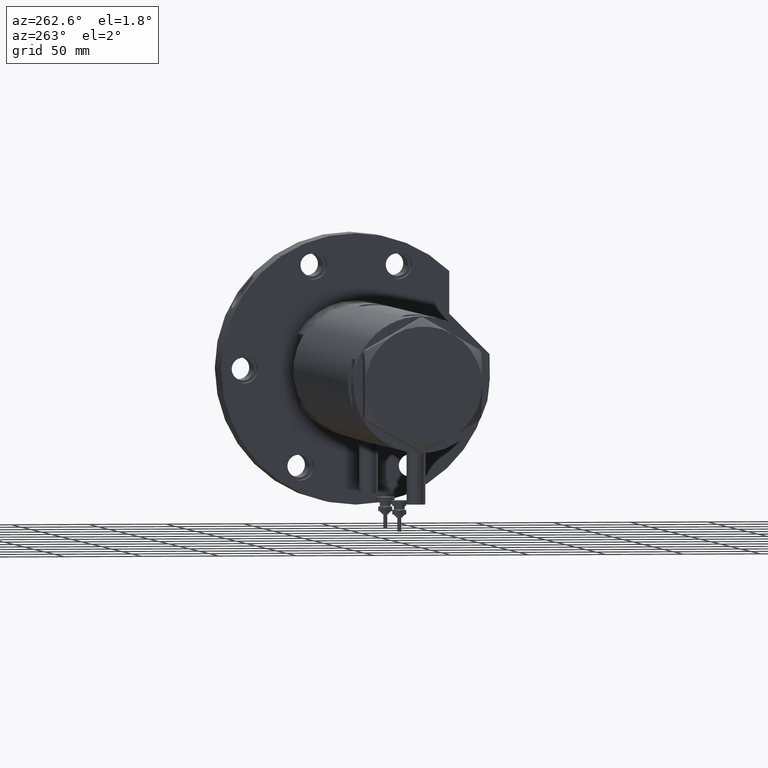
[diagram: clean part render]
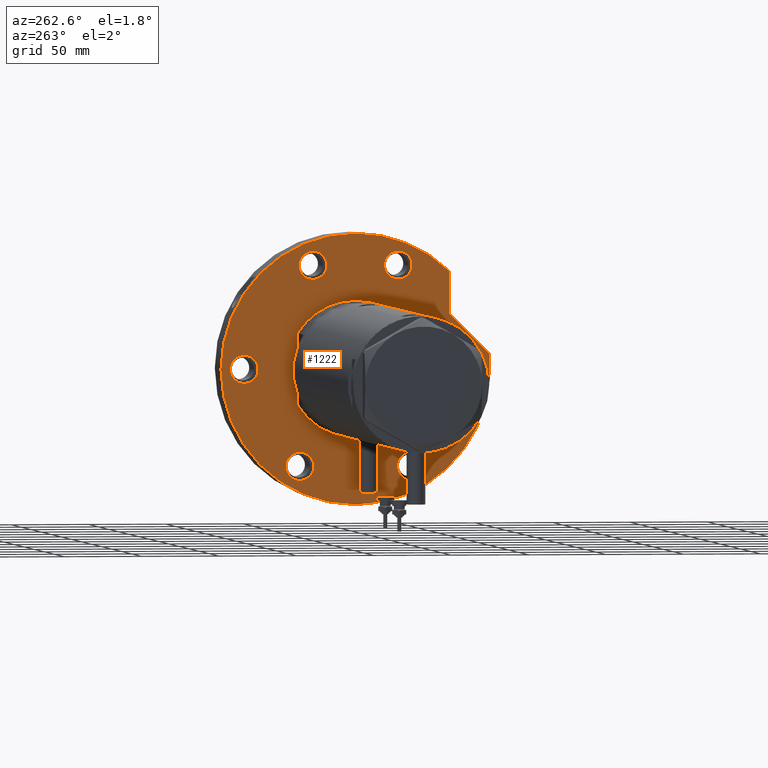
[diagram: same view with one face highlighted and labeled with its STEP entity id]
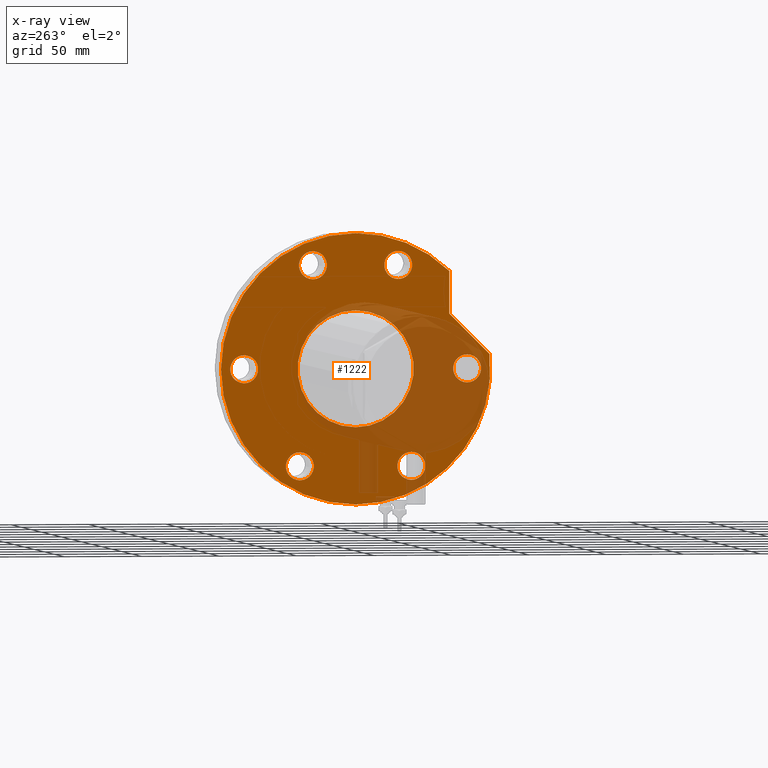
[diagram: x-ray of the same camera — body ghosted, the highlighted face saturated]
A machine part, auxiliary view. The second image highlights one B-rep face of the part: STEP entity #1222.
The next image is the same camera in x-ray: the body ghosted, the highlighted face saturated — about 30% of this face is hidden behind the body in this view.
In plain terms, the highlighted planar face has unit normal (1, 0, -0).
Its self-contained STEP definition (entity closure, byte-faithful):
#6 = DIRECTION ( 'NONE',  ( 0.000000000000000000, 0.000000000000000000, -1.000000000000000000 ) ) ;
#55 = EDGE_LOOP ( 'NONE', ( #5934, #3404 ) ) ;
#97 = CARTESIAN_POINT ( 'NONE',  ( 35.23236590573035443, 60.47687547247904405, 0.000000000000000000 ) ) ;
#114 = ORIENTED_EDGE ( 'NONE', *, *, #836, .F. ) ;
#273 = EDGE_CURVE ( 'NONE', #532, #2891, #4568, .T. ) ;
#324 = DIRECTION ( 'NONE',  ( -1.000000000000000000, 0.000000000000000000, 0.000000000000000000 ) ) ;
#335 = AXIS2_PLACEMENT_3D ( 'NONE', #4802, #5900, #6441 ) ;
#386 = DIRECTION ( 'NONE',  ( 0.000000000000000000, 0.000000000000000000, -1.000000000000000000 ) ) ;
#423 = FACE_BOUND ( 'NONE', #7437, .T. ) ;
#501 = AXIS2_PLACEMENT_3D ( 'NONE', #2897, #6, #4801 ) ;
#506 = FACE_BOUND ( 'NONE', #1653, .T. ) ;
#519 = ORIENTED_EDGE ( 'NONE', *, *, #6237, .F. ) ;
#532 = VERTEX_POINT ( 'NONE', #1779 ) ;
#593 = CIRCLE ( 'NONE', #4113, 9.000000000000001776 ) ;
#696 = CARTESIAN_POINT ( 'NONE',  ( 8.999999999999998224, 72.00000000000000000, 0.000000000000000000 ) ) ;
#710 = AXIS2_PLACEMENT_3D ( 'NONE', #6590, #1378, #6017 ) ;
#805 = CARTESIAN_POINT ( 'NONE',  ( 57.51932634081251905, -27.55320713028675073, 0.000000000000000000 ) ) ;
#824 = AXIS2_PLACEMENT_3D ( 'NONE', #2160, #6651, #5021 ) ;
#836 = EDGE_CURVE ( 'NONE', #1155, #5548, #2493, .T. ) ;
#889 = ORIENTED_EDGE ( 'NONE', *, *, #3706, .F. ) ;
#926 = VERTEX_POINT ( 'NONE', #2841 ) ;
#953 = VERTEX_POINT ( 'NONE', #1134 ) ;
#955 = VERTEX_POINT ( 'NONE', #3373 ) ;
#958 = FACE_BOUND ( 'NONE', #7241, .T. ) ;
#998 = DIRECTION ( 'NONE',  ( 0.000000000000000000, 0.000000000000000000, 1.000000000000000000 ) ) ;
#1040 = DIRECTION ( 'NONE',  ( 1.000000000000000000, 0.000000000000000000, 0.000000000000000000 ) ) ;
#1096 = CIRCLE ( 'NONE', #1576, 37.50000000000000711 ) ;
#1110 = VERTEX_POINT ( 'NONE', #97 ) ;
#1134 = CARTESIAN_POINT ( 'NONE',  ( -53.35382907247941375, -36.00000000000027711, 0.000000000000000000 ) ) ;
#1152 = DIRECTION ( 'NONE',  ( 0.000000000000000000, 0.000000000000000000, -1.000000000000000000 ) ) ;
#1155 = VERTEX_POINT ( 'NONE', #3558 ) ;
#1222 = ADVANCED_FACE ( 'NONE', ( #3395, #958, #6215, #5720, #5032, #423, #506, #2699 ), #7487, .F. ) ;
#1374 = DIRECTION ( 'NONE',  ( 0.000000000000000000, 0.000000000000000000, 1.000000000000000000 ) ) ;
#1378 = DIRECTION ( 'NONE',  ( 0.000000000000000000, 0.000000000000000000, -1.000000000000000000 ) ) ;
#1383 = CARTESIAN_POINT ( 'NONE',  ( 75.51932634081252615, -27.55320713028675073, 0.000000000000000000 ) ) ;
#1527 = DIRECTION ( 'NONE',  ( 0.000000000000000000, 0.000000000000000000, -1.000000000000000000 ) ) ;
#1562 = CIRCLE ( 'NONE', #824, 87.00000000000000000 ) ;
#1576 = AXIS2_PLACEMENT_3D ( 'NONE', #6220, #5118, #1040 ) ;
#1653 = EDGE_LOOP ( 'NONE', ( #5003, #4775 ) ) ;
#1681 = CARTESIAN_POINT ( 'NONE',  ( 66.51932634081252615, 27.55320713028675073, 0.000000000000000000 ) ) ;
#1684 = CARTESIAN_POINT ( 'NONE',  ( 37.50000000000000711, 0.000000000000000000, 0.000000000000000000 ) ) ;
#1700 = CIRCLE ( 'NONE', #2423, 87.00000000000000000 ) ;
#1716 = EDGE_CURVE ( 'NONE', #1110, #4451, #5594, .T. ) ;
#1725 = DIRECTION ( 'NONE',  ( -1.000000000000000000, 0.000000000000000000, 0.000000000000000000 ) ) ;
#1765 = CARTESIAN_POINT ( 'NONE',  ( 62.54236590573034249, 60.47687547247904405, 0.000000000000000000 ) ) ;
#1779 = CARTESIAN_POINT ( 'NONE',  ( -37.50000000000000711, 4.592425496802575156E-15, 0.000000000000000000 ) ) ;
#1805 = ORIENTED_EDGE ( 'NONE', *, *, #2593, .F. ) ;
#1809 = CIRCLE ( 'NONE', #3021, 9.000000000000001776 ) ;
#1810 = EDGE_LOOP ( 'NONE', ( #2390, #4825 ) ) ;
#1820 = DIRECTION ( 'NONE',  ( 0.000000000000000000, 0.000000000000000000, 1.000000000000000000 ) ) ;
#1859 = DIRECTION ( 'NONE',  ( -1.000000000000000000, 0.000000000000000000, 0.000000000000000000 ) ) ;
#1907 = EDGE_CURVE ( 'NONE', #6834, #7505, #5798, .T. ) ;
#1935 = CARTESIAN_POINT ( 'NONE',  ( 0.000000000000000000, 0.000000000000000000, 0.000000000000000000 ) ) ;
#1945 = AXIS2_PLACEMENT_3D ( 'NONE', #1681, #386, #6173 ) ;
#1972 = DIRECTION ( 'NONE',  ( 0.000000000000000000, 0.000000000000000000, 1.000000000000000000 ) ) ;
#2129 = CARTESIAN_POINT ( 'NONE',  ( 66.51932634081252615, 27.55320713028675073, 0.000000000000000000 ) ) ;
#2160 = CARTESIAN_POINT ( 'NONE',  ( 0.000000000000000000, 0.000000000000000000, 0.000000000000000000 ) ) ;
#2181 = ORIENTED_EDGE ( 'NONE', *, *, #7398, .F. ) ;
#2201 = CARTESIAN_POINT ( 'NONE',  ( 0.000000000000000000, 72.00000000000000000, 0.000000000000000000 ) ) ;
#2276 = CARTESIAN_POINT ( 'NONE',  ( -62.35382907247965534, 35.99999999999985079, 0.000000000000000000 ) ) ;
#2308 = CARTESIAN_POINT ( 'NONE',  ( -53.35382907247965534, 35.99999999999985079, 0.000000000000000000 ) ) ;
#2350 = DIRECTION ( 'NONE',  ( 1.000000000000000000, 0.000000000000000000, 0.000000000000000000 ) ) ;
#2390 = ORIENTED_EDGE ( 'NONE', *, *, #4833, .F. ) ;
#2423 = AXIS2_PLACEMENT_3D ( 'NONE', #4909, #1374, #6013 ) ;
#2437 = CIRCLE ( 'NONE', #501, 8.999999999999998224 ) ;
#2493 = CIRCLE ( 'NONE', #5422, 8.999999999999998224 ) ;
#2593 = EDGE_CURVE ( 'NONE', #5548, #1155, #5079, .T. ) ;
#2699 = FACE_OUTER_BOUND ( 'NONE', #3591, .T. ) ;
#2746 = VERTEX_POINT ( 'NONE', #3624 ) ;
#2822 = DIRECTION ( 'NONE',  ( 1.000000000000000000, 0.000000000000000000, -0.000000000000000000 ) ) ;
#2841 = CARTESIAN_POINT ( 'NONE',  ( 87.00000000000000000, 1.065442715258197209E-14, 0.000000000000000000 ) ) ;
#2844 = CARTESIAN_POINT ( 'NONE',  ( 35.23236590573035443, 60.47687547247904405, 0.000000000000000000 ) ) ;
#2891 = VERTEX_POINT ( 'NONE', #1684 ) ;
#2894 = CIRCLE ( 'NONE', #710, 9.000000000000001776 ) ;
#2897 = CARTESIAN_POINT ( 'NONE',  ( 0.000000000000000000, 72.00000000000000000, 0.000000000000000000 ) ) ;
#2911 = DIRECTION ( 'NONE',  ( 0.000000000000000000, 0.000000000000000000, -1.000000000000000000 ) ) ;
#3021 = AXIS2_PLACEMENT_3D ( 'NONE', #5095, #4527, #6850 ) ;
#3033 = EDGE_CURVE ( 'NONE', #7505, #926, #1562, .T. ) ;
#3229 = VERTEX_POINT ( 'NONE', #696 ) ;
#3259 = VECTOR ( 'NONE', #4169, 999.9999999999998863 ) ;
#3272 = DIRECTION ( 'NONE',  ( -1.000000000000000000, 0.000000000000000000, 0.000000000000000000 ) ) ;
#3373 = CARTESIAN_POINT ( 'NONE',  ( -71.35382907247965534, 35.99999999999985079, 0.000000000000000000 ) ) ;
#3395 = FACE_BOUND ( 'NONE', #5506, .T. ) ;
#3404 = ORIENTED_EDGE ( 'NONE', *, *, #5523, .F. ) ;
#3450 = EDGE_CURVE ( 'NONE', #953, #3810, #2894, .T. ) ;
#3480 = VERTEX_POINT ( 'NONE', #805 ) ;
#3482 = AXIS2_PLACEMENT_3D ( 'NONE', #6360, #1820, #2350 ) ;
#3534 = EDGE_CURVE ( 'NONE', #6596, #2746, #4349, .T. ) ;
#3557 = VERTEX_POINT ( 'NONE', #6252 ) ;
#3558 = CARTESIAN_POINT ( 'NONE',  ( 8.999999999999998224, -72.00000000000000000, 0.000000000000000000 ) ) ;
#3591 = EDGE_LOOP ( 'NONE', ( #6760, #4961, #519, #6673, #5811 ) ) ;
#3605 = DIRECTION ( 'NONE',  ( 1.000000000000000000, 0.000000000000000000, 0.000000000000000000 ) ) ;
#3624 = CARTESIAN_POINT ( 'NONE',  ( 57.51932634081251905, 27.55320713028675073, 0.000000000000000000 ) ) ;
#3706 = EDGE_CURVE ( 'NONE', #955, #3934, #5826, .T. ) ;
#3810 = VERTEX_POINT ( 'NONE', #7508 ) ;
#3864 = DIRECTION ( 'NONE',  ( 0.000000000000000000, 0.000000000000000000, -1.000000000000000000 ) ) ;
#3908 = CARTESIAN_POINT ( 'NONE',  ( -62.35382907247965534, 35.99999999999985079, 0.000000000000000000 ) ) ;
#3934 = VERTEX_POINT ( 'NONE', #2308 ) ;
#4054 = CARTESIAN_POINT ( 'NONE',  ( 0.000000000000000000, -72.00000000000000000, 0.000000000000000000 ) ) ;
#4113 = AXIS2_PLACEMENT_3D ( 'NONE', #2276, #7085, #1859 ) ;
#4169 = DIRECTION ( 'NONE',  ( 0.7071067811865511255, -0.7071067811865440200, -0.000000000000000000 ) ) ;
#4349 = CIRCLE ( 'NONE', #4960, 9.000000000000001776 ) ;
#4362 = CARTESIAN_POINT ( 'NONE',  ( 0.000000000000000000, -72.00000000000000000, 0.000000000000000000 ) ) ;
#4451 = VERTEX_POINT ( 'NONE', #1765 ) ;
#4517 = DIRECTION ( 'NONE',  ( -1.000000000000000000, 0.000000000000000000, 0.000000000000000000 ) ) ;
#4527 = DIRECTION ( 'NONE',  ( 0.000000000000000000, 0.000000000000000000, -1.000000000000000000 ) ) ;
#4568 = CIRCLE ( 'NONE', #7368, 37.50000000000000711 ) ;
#4775 = ORIENTED_EDGE ( 'NONE', *, *, #273, .T. ) ;
#4781 = LINE ( 'NONE', #2844, #3259 ) ;
#4801 = DIRECTION ( 'NONE',  ( -1.000000000000000000, 0.000000000000000000, 0.000000000000000000 ) ) ;
#4802 = CARTESIAN_POINT ( 'NONE',  ( -62.35382907247942086, -36.00000000000027711, 0.000000000000000000 ) ) ;
#4825 = ORIENTED_EDGE ( 'NONE', *, *, #3450, .F. ) ;
#4833 = EDGE_CURVE ( 'NONE', #3810, #953, #7400, .T. ) ;
#4909 = CARTESIAN_POINT ( 'NONE',  ( 0.000000000000000000, 0.000000000000000000, 0.000000000000000000 ) ) ;
#4960 = AXIS2_PLACEMENT_3D ( 'NONE', #2129, #1527, #3272 ) ;
#4961 = ORIENTED_EDGE ( 'NONE', *, *, #1716, .T. ) ;
#5003 = ORIENTED_EDGE ( 'NONE', *, *, #5951, .T. ) ;
#5021 = DIRECTION ( 'NONE',  ( 1.000000000000000000, 0.000000000000000000, 0.000000000000000000 ) ) ;
#5032 = FACE_BOUND ( 'NONE', #1810, .T. ) ;
#5051 = DIRECTION ( 'NONE',  ( 0.000000000000000000, 0.000000000000000000, -1.000000000000000000 ) ) ;
#5079 = CIRCLE ( 'NONE', #6776, 8.999999999999998224 ) ;
#5095 = CARTESIAN_POINT ( 'NONE',  ( 66.51932634081252615, -27.55320713028675073, 0.000000000000000000 ) ) ;
#5118 = DIRECTION ( 'NONE',  ( 0.000000000000000000, 0.000000000000000000, 1.000000000000000000 ) ) ;
#5171 = CARTESIAN_POINT ( 'NONE',  ( -8.999999999999998224, -72.00000000000000000, 0.000000000000000000 ) ) ;
#5242 = CIRCLE ( 'NONE', #1945, 9.000000000000001776 ) ;
#5259 = EDGE_CURVE ( 'NONE', #3934, #955, #593, .T. ) ;
#5422 = AXIS2_PLACEMENT_3D ( 'NONE', #4362, #3864, #6196 ) ;
#5432 = VECTOR ( 'NONE', #6855, 1000.000000000000000 ) ;
#5497 = EDGE_CURVE ( 'NONE', #3557, #3229, #6319, .T. ) ;
#5506 = EDGE_LOOP ( 'NONE', ( #7543, #2181 ) ) ;
#5523 = EDGE_CURVE ( 'NONE', #5849, #3480, #1809, .T. ) ;
#5528 = ORIENTED_EDGE ( 'NONE', *, *, #5259, .F. ) ;
#5547 = CARTESIAN_POINT ( 'NONE',  ( 75.51932634081252615, 27.55320713028675073, 0.000000000000000000 ) ) ;
#5548 = VERTEX_POINT ( 'NONE', #5171 ) ;
#5552 = CARTESIAN_POINT ( 'NONE',  ( 35.23236590573035443, 60.47687547247904405, 0.000000000000000000 ) ) ;
#5562 = CARTESIAN_POINT ( 'NONE',  ( 0.000000000000000000, 0.000000000000000000, 0.000000000000000000 ) ) ;
#5573 = CARTESIAN_POINT ( 'NONE',  ( 9.196694222441541555, 86.51254715576759224, 0.000000000000000000 ) ) ;
#5594 = LINE ( 'NONE', #5552, #5432 ) ;
#5632 = EDGE_CURVE ( 'NONE', #6834, #1110, #4781, .T. ) ;
#5657 = CARTESIAN_POINT ( 'NONE',  ( -87.00000000000000000, 0.000000000000000000, 0.000000000000000000 ) ) ;
#5720 = FACE_BOUND ( 'NONE', #5838, .T. ) ;
#5773 = ORIENTED_EDGE ( 'NONE', *, *, #7225, .F. ) ;
#5798 = CIRCLE ( 'NONE', #3482, 87.00000000000000000 ) ;
#5811 = ORIENTED_EDGE ( 'NONE', *, *, #1907, .F. ) ;
#5824 = AXIS2_PLACEMENT_3D ( 'NONE', #2201, #5051, #324 ) ;
#5826 = CIRCLE ( 'NONE', #7415, 9.000000000000001776 ) ;
#5838 = EDGE_LOOP ( 'NONE', ( #1805, #114 ) ) ;
#5849 = VERTEX_POINT ( 'NONE', #1383 ) ;
#5900 = DIRECTION ( 'NONE',  ( 0.000000000000000000, 0.000000000000000000, -1.000000000000000000 ) ) ;
#5934 = ORIENTED_EDGE ( 'NONE', *, *, #6001, .F. ) ;
#5951 = EDGE_CURVE ( 'NONE', #2891, #532, #1096, .T. ) ;
#6001 = EDGE_CURVE ( 'NONE', #3480, #5849, #7297, .T. ) ;
#6013 = DIRECTION ( 'NONE',  ( 1.000000000000000000, 0.000000000000000000, 0.000000000000000000 ) ) ;
#6017 = DIRECTION ( 'NONE',  ( -1.000000000000000000, 0.000000000000000000, 0.000000000000000000 ) ) ;
#6144 = AXIS2_PLACEMENT_3D ( 'NONE', #5562, #998, #2822 ) ;
#6173 = DIRECTION ( 'NONE',  ( -1.000000000000000000, 0.000000000000000000, 0.000000000000000000 ) ) ;
#6196 = DIRECTION ( 'NONE',  ( -1.000000000000000000, 0.000000000000000000, 0.000000000000000000 ) ) ;
#6197 = DIRECTION ( 'NONE',  ( 0.000000000000000000, 0.000000000000000000, -1.000000000000000000 ) ) ;
#6215 = FACE_BOUND ( 'NONE', #55, .T. ) ;
#6220 = CARTESIAN_POINT ( 'NONE',  ( 0.000000000000000000, 0.000000000000000000, 0.000000000000000000 ) ) ;
#6237 = EDGE_CURVE ( 'NONE', #926, #4451, #1700, .T. ) ;
#6252 = CARTESIAN_POINT ( 'NONE',  ( -8.999999999999998224, 72.00000000000000000, 0.000000000000000000 ) ) ;
#6319 = CIRCLE ( 'NONE', #5824, 8.999999999999998224 ) ;
#6360 = CARTESIAN_POINT ( 'NONE',  ( 0.000000000000000000, 0.000000000000000000, 0.000000000000000000 ) ) ;
#6441 = DIRECTION ( 'NONE',  ( -1.000000000000000000, 0.000000000000000000, 0.000000000000000000 ) ) ;
#6454 = ORIENTED_EDGE ( 'NONE', *, *, #3534, .F. ) ;
#6590 = CARTESIAN_POINT ( 'NONE',  ( -62.35382907247942086, -36.00000000000027711, 0.000000000000000000 ) ) ;
#6596 = VERTEX_POINT ( 'NONE', #5547 ) ;
#6651 = DIRECTION ( 'NONE',  ( 0.000000000000000000, 0.000000000000000000, 1.000000000000000000 ) ) ;
#6673 = ORIENTED_EDGE ( 'NONE', *, *, #3033, .F. ) ;
#6675 = AXIS2_PLACEMENT_3D ( 'NONE', #7454, #1152, #1725 ) ;
#6722 = DIRECTION ( 'NONE',  ( -1.000000000000000000, 0.000000000000000000, 0.000000000000000000 ) ) ;
#6760 = ORIENTED_EDGE ( 'NONE', *, *, #5632, .T. ) ;
#6776 = AXIS2_PLACEMENT_3D ( 'NONE', #4054, #2911, #4517 ) ;
#6834 = VERTEX_POINT ( 'NONE', #5573 ) ;
#6850 = DIRECTION ( 'NONE',  ( -1.000000000000000000, 0.000000000000000000, 0.000000000000000000 ) ) ;
#6855 = DIRECTION ( 'NONE',  ( 1.000000000000000000, 0.000000000000000000, 0.000000000000000000 ) ) ;
#7085 = DIRECTION ( 'NONE',  ( 0.000000000000000000, 0.000000000000000000, -1.000000000000000000 ) ) ;
#7225 = EDGE_CURVE ( 'NONE', #2746, #6596, #5242, .T. ) ;
#7241 = EDGE_LOOP ( 'NONE', ( #5773, #6454 ) ) ;
#7297 = CIRCLE ( 'NONE', #6675, 9.000000000000001776 ) ;
#7368 = AXIS2_PLACEMENT_3D ( 'NONE', #1935, #1972, #3605 ) ;
#7398 = EDGE_CURVE ( 'NONE', #3229, #3557, #2437, .T. ) ;
#7400 = CIRCLE ( 'NONE', #335, 9.000000000000001776 ) ;
#7415 = AXIS2_PLACEMENT_3D ( 'NONE', #3908, #6197, #6722 ) ;
#7437 = EDGE_LOOP ( 'NONE', ( #889, #5528 ) ) ;
#7454 = CARTESIAN_POINT ( 'NONE',  ( 66.51932634081252615, -27.55320713028675073, 0.000000000000000000 ) ) ;
#7487 = PLANE ( 'NONE',  #6144 ) ;
#7505 = VERTEX_POINT ( 'NONE', #5657 ) ;
#7508 = CARTESIAN_POINT ( 'NONE',  ( -71.35382907247941375, -36.00000000000027711, 0.000000000000000000 ) ) ;
#7543 = ORIENTED_EDGE ( 'NONE', *, *, #5497, .F. ) ;